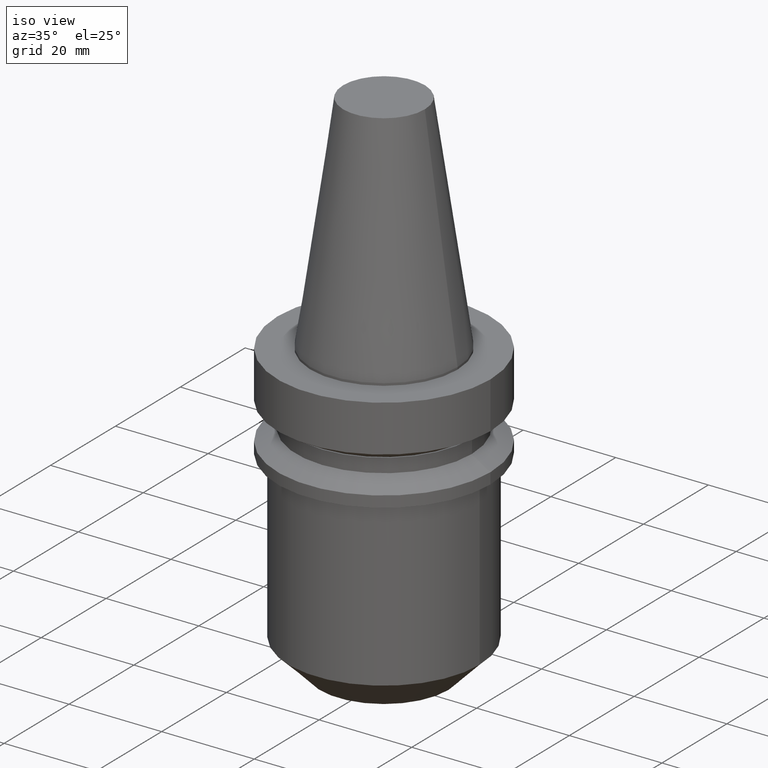
[diagram: clean part render]
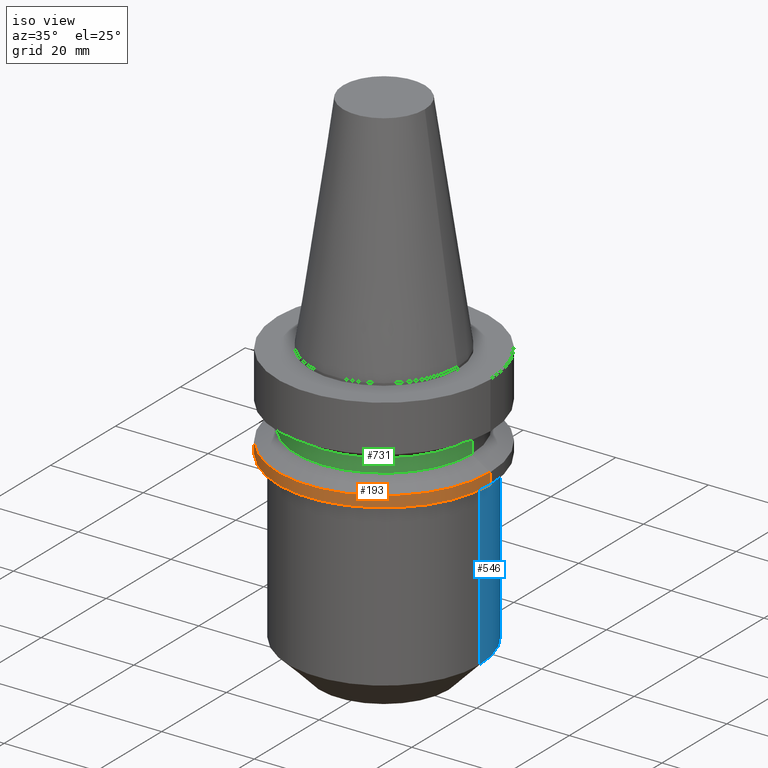
[diagram: same view with three faces highlighted in distinct colors, each labeled with its STEP entity id]
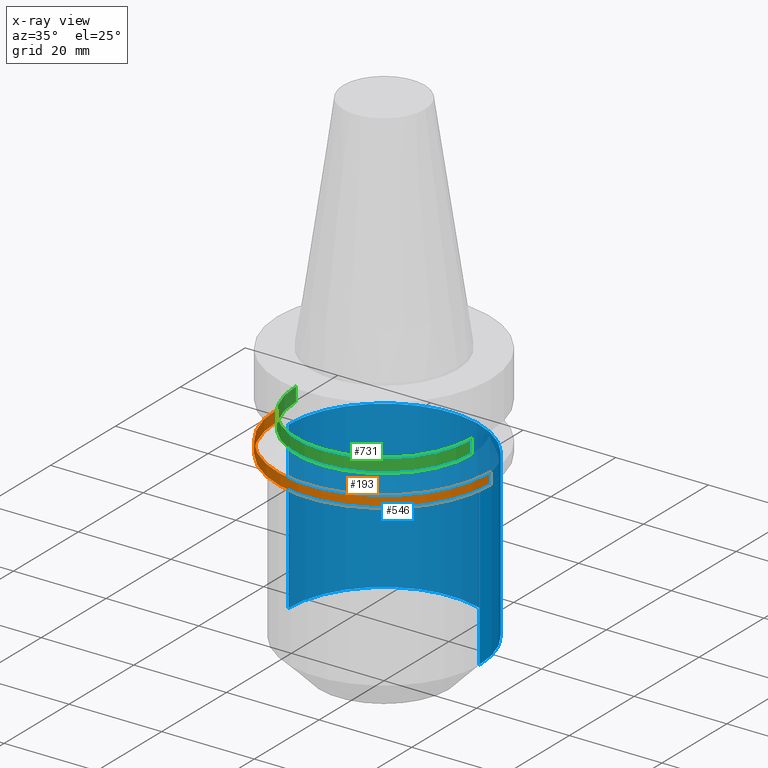
[diagram: x-ray of the same camera — body ghosted, the three highlighted faces saturated]
A machine part, iso view with three faces highlighted in distinct colors.
The next image is the same camera in x-ray (body ghosted, the three faces saturated) — at least one of them is partly hidden behind the body in this view.
Their STEP definitions:

[orange] entity #193 — the highlighted cylindrical surface (partial cylindrical patch) has radius 23 mm, axis along (-0, -0, 1).
#12 = ORIENTED_EDGE ( 'NONE', *, *, #631, .F. ) ;
#20 = VERTEX_POINT ( 'NONE', #649 ) ;
#85 = EDGE_LOOP ( 'NONE', ( #303, #521, #109, #12 ) ) ;
#102 = VECTOR ( 'NONE', #699, 1000.000000000000000 ) ;
#109 = ORIENTED_EDGE ( 'NONE', *, *, #395, .T. ) ;
#124 = DIRECTION ( 'NONE',  ( 1.000000000000000000, 0.000000000000000000, 0.000000000000000000 ) ) ;
#167 = EDGE_CURVE ( 'NONE', #20, #774, #549, .T. ) ;
#193 = ADVANCED_FACE ( 'NONE', ( #478 ), #681, .T. ) ;
#202 = CARTESIAN_POINT ( 'NONE',  ( 0.000000000000000000, 0.000000000000000000, -21.00000000000000355 ) ) ;
#206 = DIRECTION ( 'NONE',  ( 1.000000000000000000, 0.000000000000000000, 0.000000000000000000 ) ) ;
#236 = CIRCLE ( 'NONE', #456, 22.99999999999999289 ) ;
#245 = DIRECTION ( 'NONE',  ( -0.000000000000000000, -0.000000000000000000, 1.000000000000000000 ) ) ;
#247 = AXIS2_PLACEMENT_3D ( 'NONE', #499, #571, #206 ) ;
#298 = CARTESIAN_POINT ( 'NONE',  ( 22.99999999999999289, 0.000000000000000000, -21.00000000000000355 ) ) ;
#303 = ORIENTED_EDGE ( 'NONE', *, *, #167, .F. ) ;
#339 = LINE ( 'NONE', #646, #102 ) ;
#365 = CARTESIAN_POINT ( 'NONE',  ( -22.99999999999999645, 2.816687638038911957E-15, 48.39999999999998437 ) ) ;
#395 = EDGE_CURVE ( 'NONE', #550, #490, #339, .T. ) ;
#411 = CARTESIAN_POINT ( 'NONE',  ( 23.00000000000000000, 0.000000000000000000, -18.60014200631680836 ) ) ;
#438 = CARTESIAN_POINT ( 'NONE',  ( -23.00000000000000000, 2.816687638038912746E-15, -18.60014200631680836 ) ) ;
#456 = AXIS2_PLACEMENT_3D ( 'NONE', #202, #506, #730 ) ;
#478 = FACE_OUTER_BOUND ( 'NONE', #85, .T. ) ;
#490 = VERTEX_POINT ( 'NONE', #411 ) ;
#499 = CARTESIAN_POINT ( 'NONE',  ( 0.000000000000000000, 0.000000000000000000, 48.39999999999998437 ) ) ;
#506 = DIRECTION ( 'NONE',  ( -0.000000000000000000, -0.000000000000000000, 1.000000000000000000 ) ) ;
#521 = ORIENTED_EDGE ( 'NONE', *, *, #736, .T. ) ;
#534 = AXIS2_PLACEMENT_3D ( 'NONE', #666, #767, #124 ) ;
#549 = LINE ( 'NONE', #365, #590 ) ;
#550 = VERTEX_POINT ( 'NONE', #298 ) ;
#571 = DIRECTION ( 'NONE',  ( -0.000000000000000000, -0.000000000000000000, 1.000000000000000000 ) ) ;
#590 = VECTOR ( 'NONE', #245, 1000.000000000000000 ) ;
#592 = CIRCLE ( 'NONE', #534, 23.00000000000000000 ) ;
#631 = EDGE_CURVE ( 'NONE', #774, #490, #592, .T. ) ;
#646 = CARTESIAN_POINT ( 'NONE',  ( 22.99999999999999645, 0.000000000000000000, 48.39999999999998437 ) ) ;
#649 = CARTESIAN_POINT ( 'NONE',  ( -22.99999999999999289, 2.816687638038911957E-15, -21.00000000000000355 ) ) ;
#666 = CARTESIAN_POINT ( 'NONE',  ( 0.000000000000000000, 0.000000000000000000, -18.60014200631680836 ) ) ;
#681 = CYLINDRICAL_SURFACE ( 'NONE', #247, 22.99999999999999645 ) ;
#699 = DIRECTION ( 'NONE',  ( -0.000000000000000000, -0.000000000000000000, 1.000000000000000000 ) ) ;
#730 = DIRECTION ( 'NONE',  ( 1.000000000000000000, 0.000000000000000000, 0.000000000000000000 ) ) ;
#736 = EDGE_CURVE ( 'NONE', #20, #550, #236, .T. ) ;
#767 = DIRECTION ( 'NONE',  ( -0.000000000000000000, -0.000000000000000000, 1.000000000000000000 ) ) ;
#774 = VERTEX_POINT ( 'NONE', #438 ) ;

[blue] entity #546 — the highlighted cylindrical surface (partial cylindrical patch) has radius 20.64 mm, axis along (-0, -0, 1).
#13 = EDGE_CURVE ( 'NONE', #107, #721, #763, .T. ) ;
#25 = AXIS2_PLACEMENT_3D ( 'NONE', #293, #540, #178 ) ;
#55 = DIRECTION ( 'NONE',  ( -0.000000000000000000, -0.000000000000000000, 1.000000000000000000 ) ) ;
#56 = CARTESIAN_POINT ( 'NONE',  ( 0.000000000000000000, 0.000000000000000000, -56.80000000000000426 ) ) ;
#63 = DIRECTION ( 'NONE',  ( 1.000000000000000000, 0.000000000000000000, 0.000000000000000000 ) ) ;
#107 = VERTEX_POINT ( 'NONE', #601 ) ;
#113 = CARTESIAN_POINT ( 'NONE',  ( -20.64000000000000412, 2.527670993440137734E-15, -20.99999999999999645 ) ) ;
#116 = EDGE_CURVE ( 'NONE', #107, #273, #389, .T. ) ;
#117 = LINE ( 'NONE', #240, #543 ) ;
#118 = DIRECTION ( 'NONE',  ( -0.000000000000000000, -0.000000000000000000, 1.000000000000000000 ) ) ;
#165 = ORIENTED_EDGE ( 'NONE', *, *, #116, .T. ) ;
#178 = DIRECTION ( 'NONE',  ( 1.000000000000000000, 0.000000000000000000, 0.000000000000000000 ) ) ;
#209 = AXIS2_PLACEMENT_3D ( 'NONE', #579, #754, #589 ) ;
#239 = ORIENTED_EDGE ( 'NONE', *, *, #13, .F. ) ;
#240 = CARTESIAN_POINT ( 'NONE',  ( -20.64000000000000412, 2.527670993440137734E-15, 0.000000000000000000 ) ) ;
#273 = VERTEX_POINT ( 'NONE', #314 ) ;
#293 = CARTESIAN_POINT ( 'NONE',  ( 0.000000000000000000, 0.000000000000000000, 0.000000000000000000 ) ) ;
#314 = CARTESIAN_POINT ( 'NONE',  ( -20.64000000000000057, 2.527670993440137339E-15, -56.80000000000000426 ) ) ;
#389 = CIRCLE ( 'NONE', #451, 20.64000000000000057 ) ;
#412 = ORIENTED_EDGE ( 'NONE', *, *, #463, .T. ) ;
#451 = AXIS2_PLACEMENT_3D ( 'NONE', #56, #118, #63 ) ;
#463 = EDGE_CURVE ( 'NONE', #622, #721, #628, .T. ) ;
#464 = VECTOR ( 'NONE', #472, 1000.000000000000000 ) ;
#472 = DIRECTION ( 'NONE',  ( -0.000000000000000000, -0.000000000000000000, 1.000000000000000000 ) ) ;
#482 = FACE_OUTER_BOUND ( 'NONE', #694, .T. ) ;
#495 = CARTESIAN_POINT ( 'NONE',  ( 20.64000000000000412, 0.000000000000000000, -20.99999999999999645 ) ) ;
#540 = DIRECTION ( 'NONE',  ( -0.000000000000000000, -0.000000000000000000, 1.000000000000000000 ) ) ;
#543 = VECTOR ( 'NONE', #55, 1000.000000000000000 ) ;
#546 = ADVANCED_FACE ( 'NONE', ( #482 ), #709, .T. ) ;
#563 = ORIENTED_EDGE ( 'NONE', *, *, #584, .T. ) ;
#579 = CARTESIAN_POINT ( 'NONE',  ( 0.000000000000000000, 0.000000000000000000, -20.99999999999999645 ) ) ;
#584 = EDGE_CURVE ( 'NONE', #273, #622, #117, .T. ) ;
#589 = DIRECTION ( 'NONE',  ( 1.000000000000000000, 0.000000000000000000, 0.000000000000000000 ) ) ;
#601 = CARTESIAN_POINT ( 'NONE',  ( 20.64000000000000057, 0.000000000000000000, -56.80000000000000426 ) ) ;
#622 = VERTEX_POINT ( 'NONE', #113 ) ;
#628 = CIRCLE ( 'NONE', #209, 20.64000000000000412 ) ;
#651 = CARTESIAN_POINT ( 'NONE',  ( 20.64000000000000412, 0.000000000000000000, 0.000000000000000000 ) ) ;
#694 = EDGE_LOOP ( 'NONE', ( #165, #563, #412, #239 ) ) ;
#709 = CYLINDRICAL_SURFACE ( 'NONE', #25, 20.64000000000000412 ) ;
#721 = VERTEX_POINT ( 'NONE', #495 ) ;
#754 = DIRECTION ( 'NONE',  ( 0.000000000000000000, 0.000000000000000000, -1.000000000000000000 ) ) ;
#763 = LINE ( 'NONE', #651, #464 ) ;

[green] entity #731 — the highlighted cylindrical surface (partial cylindrical patch) has radius 19 mm, axis along (-0, -0, 1).
#14 = LINE ( 'NONE', #448, #105 ) ;
#17 = CARTESIAN_POINT ( 'NONE',  ( 0.000000000000000000, 0.000000000000000000, 48.39999999999998437 ) ) ;
#26 = DIRECTION ( 'NONE',  ( -0.000000000000000000, -0.000000000000000000, 1.000000000000000000 ) ) ;
#62 = CIRCLE ( 'NONE', #158, 19.00000000000000000 ) ;
#105 = VECTOR ( 'NONE', #615, 1000.000000000000000 ) ;
#128 = DIRECTION ( 'NONE',  ( 1.000000000000000000, 0.000000000000000000, 0.000000000000000000 ) ) ;
#136 = VERTEX_POINT ( 'NONE', #175 ) ;
#151 = VERTEX_POINT ( 'NONE', #185 ) ;
#158 = AXIS2_PLACEMENT_3D ( 'NONE', #317, #449, #674 ) ;
#175 = CARTESIAN_POINT ( 'NONE',  ( -19.00000000000000000, 2.326828918379970970E-15, -16.10000000000000142 ) ) ;
#185 = CARTESIAN_POINT ( 'NONE',  ( 19.00000000000000000, 0.000000000000000000, -16.10000000000000142 ) ) ;
#190 = VERTEX_POINT ( 'NONE', #768 ) ;
#278 = DIRECTION ( 'NONE',  ( -0.000000000000000000, -0.000000000000000000, 1.000000000000000000 ) ) ;
#279 = EDGE_CURVE ( 'NONE', #336, #190, #62, .T. ) ;
#285 = ORIENTED_EDGE ( 'NONE', *, *, #656, .T. ) ;
#315 = ORIENTED_EDGE ( 'NONE', *, *, #381, .T. ) ;
#317 = CARTESIAN_POINT ( 'NONE',  ( 0.000000000000000000, 0.000000000000000000, -13.10028401263362063 ) ) ;
#319 = EDGE_LOOP ( 'NONE', ( #532, #285, #315, #433 ) ) ;
#336 = VERTEX_POINT ( 'NONE', #611 ) ;
#381 = EDGE_CURVE ( 'NONE', #151, #190, #458, .T. ) ;
#416 = AXIS2_PLACEMENT_3D ( 'NONE', #17, #26, #570 ) ;
#433 = ORIENTED_EDGE ( 'NONE', *, *, #279, .F. ) ;
#448 = CARTESIAN_POINT ( 'NONE',  ( -19.00000000000000000, 2.326828918379970970E-15, 48.39999999999998437 ) ) ;
#449 = DIRECTION ( 'NONE',  ( -0.000000000000000000, -0.000000000000000000, 1.000000000000000000 ) ) ;
#458 = LINE ( 'NONE', #750, #639 ) ;
#501 = FACE_OUTER_BOUND ( 'NONE', #319, .T. ) ;
#522 = AXIS2_PLACEMENT_3D ( 'NONE', #722, #653, #128 ) ;
#532 = ORIENTED_EDGE ( 'NONE', *, *, #771, .F. ) ;
#570 = DIRECTION ( 'NONE',  ( 1.000000000000000000, 0.000000000000000000, 0.000000000000000000 ) ) ;
#611 = CARTESIAN_POINT ( 'NONE',  ( -19.00000000000000000, 2.326828918379970970E-15, -13.10028401263362063 ) ) ;
#615 = DIRECTION ( 'NONE',  ( -0.000000000000000000, -0.000000000000000000, 1.000000000000000000 ) ) ;
#639 = VECTOR ( 'NONE', #278, 1000.000000000000000 ) ;
#653 = DIRECTION ( 'NONE',  ( -0.000000000000000000, -0.000000000000000000, 1.000000000000000000 ) ) ;
#656 = EDGE_CURVE ( 'NONE', #136, #151, #700, .T. ) ;
#673 = CYLINDRICAL_SURFACE ( 'NONE', #416, 19.00000000000000000 ) ;
#674 = DIRECTION ( 'NONE',  ( 1.000000000000000000, 0.000000000000000000, 0.000000000000000000 ) ) ;
#700 = CIRCLE ( 'NONE', #522, 19.00000000000000000 ) ;
#722 = CARTESIAN_POINT ( 'NONE',  ( 0.000000000000000000, 0.000000000000000000, -16.10000000000000142 ) ) ;
#731 = ADVANCED_FACE ( 'NONE', ( #501 ), #673, .T. ) ;
#750 = CARTESIAN_POINT ( 'NONE',  ( 19.00000000000000000, 0.000000000000000000, 48.39999999999998437 ) ) ;
#768 = CARTESIAN_POINT ( 'NONE',  ( 19.00000000000000000, 0.000000000000000000, -13.10028401263362063 ) ) ;
#771 = EDGE_CURVE ( 'NONE', #136, #336, #14, .T. ) ;